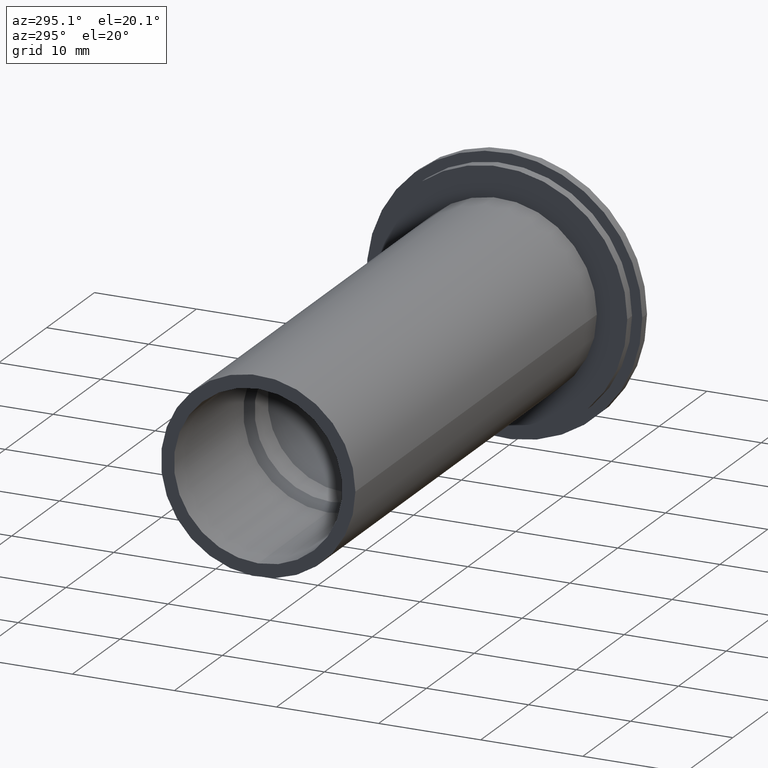
[diagram: clean part render]
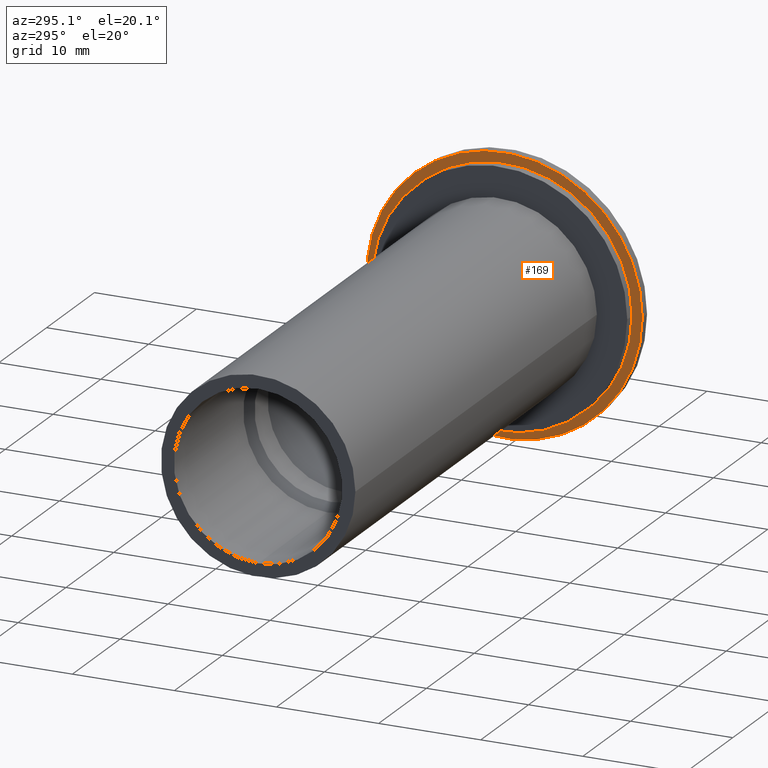
[diagram: same view with one face highlighted and labeled with its STEP entity id]
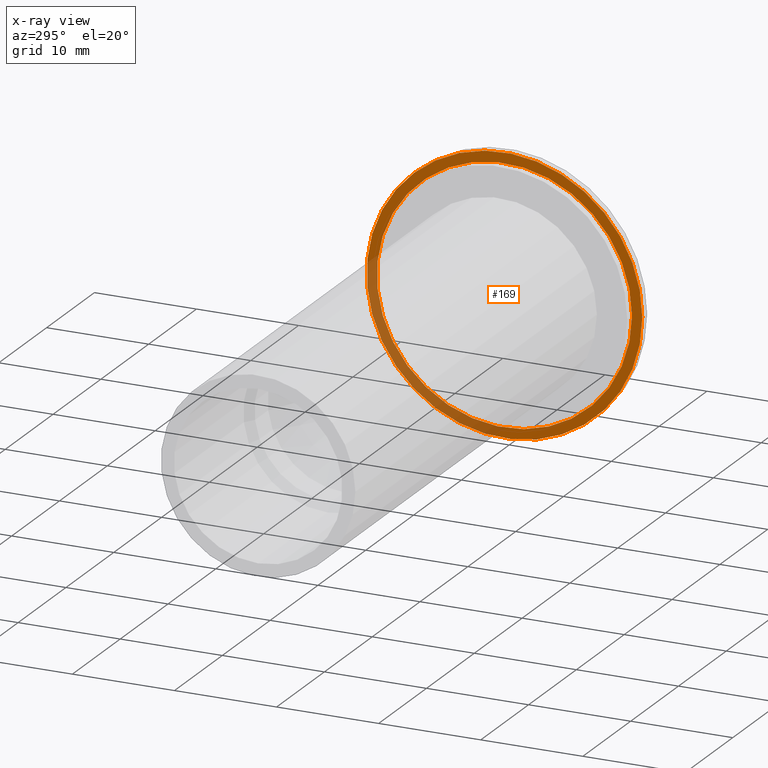
[diagram: x-ray of the same camera — body ghosted, the highlighted face saturated]
A machine part, auxiliary view. The second image highlights one B-rep face of the part: STEP entity #169.
The next image is the same camera in x-ray: the body ghosted, the highlighted face saturated — about 26% of this face is hidden behind the body in this view.
In plain terms, the highlighted planar face has unit normal (-1, 0, 0).
Its self-contained STEP definition (entity closure, byte-faithful):
#15=FACE_BOUND('',#43,.T.);
#19=PLANE('',#211);
#30=FACE_OUTER_BOUND('',#42,.T.);
#42=EDGE_LOOP('',(#138));
#43=EDGE_LOOP('',(#139));
#76=CIRCLE('',#212,13.5);
#77=CIRCLE('',#213,12.5);
#89=VERTEX_POINT('',#310);
#90=VERTEX_POINT('',#312);
#107=EDGE_CURVE('',#89,#89,#76,.T.);
#108=EDGE_CURVE('',#90,#90,#77,.T.);
#138=ORIENTED_EDGE('',*,*,#107,.F.);
#139=ORIENTED_EDGE('',*,*,#108,.T.);
#169=ADVANCED_FACE('',(#30,#15),#19,.T.);
#211=AXIS2_PLACEMENT_3D('',#309,#255,#256);
#212=AXIS2_PLACEMENT_3D('',#311,#257,#258);
#213=AXIS2_PLACEMENT_3D('',#313,#259,#260);
#255=DIRECTION('center_axis',(-1.,0.,0.));
#256=DIRECTION('ref_axis',(0.,0.,1.));
#257=DIRECTION('center_axis',(1.,0.,0.));
#258=DIRECTION('ref_axis',(0.,0.,-1.));
#259=DIRECTION('center_axis',(1.,0.,0.));
#260=DIRECTION('ref_axis',(0.,0.,-1.));
#309=CARTESIAN_POINT('Origin',(-0.999999999999996,13.5,0.));
#310=CARTESIAN_POINT('',(-0.999999999999996,-13.5,-1.65327317884893E-15));
#311=CARTESIAN_POINT('Origin',(-0.999999999999996,0.,0.));
#312=CARTESIAN_POINT('',(-0.999999999999996,-12.5,-1.53080849893419E-15));
#313=CARTESIAN_POINT('Origin',(-0.999999999999996,0.,0.));